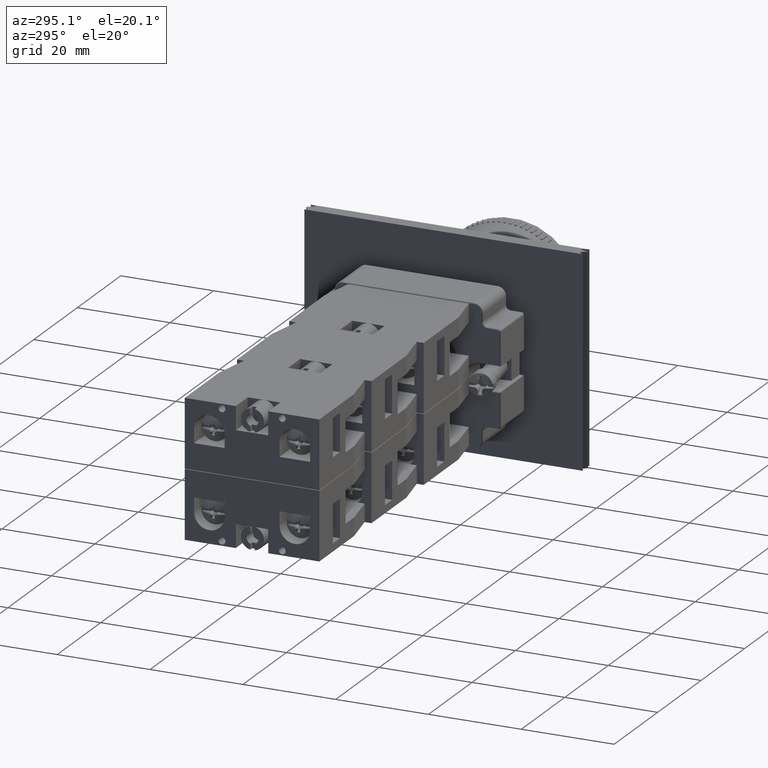
[diagram: clean part render]
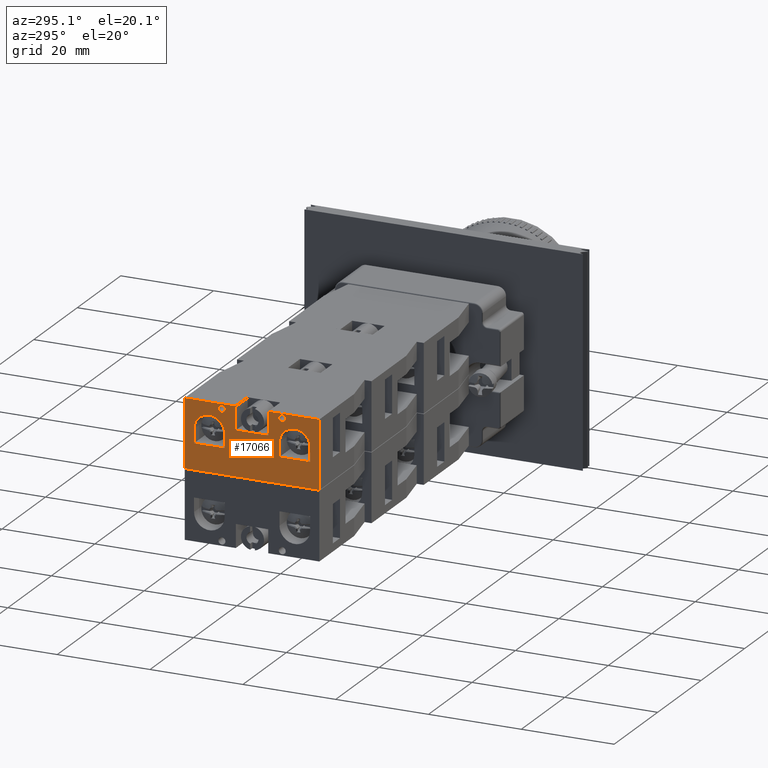
[diagram: same view with one face highlighted and labeled with its STEP entity id]
A machine part, auxiliary view. The second image highlights one B-rep face of the part: STEP entity #17066.
In plain terms, the highlighted planar face has unit normal (-1, -0, -0).
Its self-contained STEP definition (entity closure, byte-faithful):
#15468=CARTESIAN_POINT('',(-44.936741828918471,23.797073323279623,14.699999999999999));
#15469=VERTEX_POINT('',#15468);
#15476=CARTESIAN_POINT('',(-44.936741828918471,23.797073323279623,0.0));
#15477=VERTEX_POINT('',#15476);
#15478=CARTESIAN_POINT('',(-44.936741828918471,23.797073323279623,0.0));
#15479=DIRECTION('',(0.0,0.0,1.0));
#15480=VECTOR('',#15479,14.699999999999999);
#15481=LINE('',#15478,#15480);
#15482=EDGE_CURVE('',#15477,#15469,#15481,.T.);
#16451=CARTESIAN_POINT('',(-36.186741828918457,23.797073323279623,13.700000000000001));
#16452=VERTEX_POINT('',#16451);
#16453=CARTESIAN_POINT('',(-36.936741828918457,23.797073323279623,13.700000000000001));
#16454=DIRECTION('',(0.0,-1.0,0.0));
#16455=DIRECTION('',(-1.0,0.0,0.0));
#16456=AXIS2_PLACEMENT_3D('',#16453,#16454,#16455);
#16457=CIRCLE('',#16456,0.750000000000000);
#16458=EDGE_CURVE('',#16452,#16452,#16457,.T.);
#16488=CARTESIAN_POINT('',(-23.186741828918453,23.797073323279626,13.700000000000001));
#16489=VERTEX_POINT('',#16488);
#16490=CARTESIAN_POINT('',(-23.936741828918457,23.797073323279623,13.700000000000001));
#16491=DIRECTION('',(0.0,-1.0,0.0));
#16492=DIRECTION('',(-1.0,0.0,0.0));
#16493=AXIS2_PLACEMENT_3D('',#16490,#16491,#16492);
#16494=CIRCLE('',#16493,0.750000000000000);
#16495=EDGE_CURVE('',#16489,#16489,#16494,.T.);
#16563=CARTESIAN_POINT('',(-24.536741828918480,23.797073323279633,5.600000000000000));
#16564=VERTEX_POINT('',#16563);
#16571=CARTESIAN_POINT('',(-24.536741828918473,23.797073323279633,8.600000000000000));
#16572=VERTEX_POINT('',#16571);
#16573=CARTESIAN_POINT('',(-24.536741828918473,23.797073323279633,8.600000000000000));
#16574=DIRECTION('',(0.0,0.0,-1.0));
#16575=VECTOR('',#16574,3.0);
#16576=LINE('',#16573,#16575);
#16577=EDGE_CURVE('',#16572,#16564,#16576,.T.);
#16594=CARTESIAN_POINT('',(-17.936741828918478,23.797073323279641,5.600000000000000));
#16595=VERTEX_POINT('',#16594);
#16602=CARTESIAN_POINT('',(-24.536741828918480,23.797073323279633,5.600000000000000));
#16603=DIRECTION('',(1.0,0.0,0.0));
#16604=VECTOR('',#16603,6.600000000000001);
#16605=LINE('',#16602,#16604);
#16606=EDGE_CURVE('',#16564,#16595,#16605,.T.);
#16659=CARTESIAN_POINT('',(-36.336741828918470,23.797073323279623,8.600000000000000));
#16660=VERTEX_POINT('',#16659);
#16667=CARTESIAN_POINT('',(-36.336741828918463,23.797073323279623,5.600000000000000));
#16668=VERTEX_POINT('',#16667);
#16669=CARTESIAN_POINT('',(-36.336741828918463,23.797073323279623,5.600000000000000));
#16670=DIRECTION('',(0.0,0.0,1.0));
#16671=VECTOR('',#16670,3.0);
#16672=LINE('',#16669,#16671);
#16673=EDGE_CURVE('',#16668,#16660,#16672,.T.);
#16690=CARTESIAN_POINT('',(-42.936741828918471,23.797073323279623,8.600000000000000));
#16691=VERTEX_POINT('',#16690);
#16698=CARTESIAN_POINT('',(-39.636741828918467,23.797073323279623,8.600000000000000));
#16699=DIRECTION('',(0.0,-1.0,0.0));
#16700=DIRECTION('',(1.0,0.0,0.0));
#16701=AXIS2_PLACEMENT_3D('',#16698,#16699,#16700);
#16702=CIRCLE('',#16701,3.300000000000001);
#16703=EDGE_CURVE('',#16660,#16691,#16702,.T.);
#16715=CARTESIAN_POINT('',(-17.936741828918478,23.797073323279641,8.600000000000000));
#16716=VERTEX_POINT('',#16715);
#16723=CARTESIAN_POINT('',(-17.936741828918478,23.797073323279641,5.600000000000000));
#16724=DIRECTION('',(0.0,0.0,1.0));
#16725=VECTOR('',#16724,3.0);
#16726=LINE('',#16723,#16725);
#16727=EDGE_CURVE('',#16595,#16716,#16726,.T.);
#16761=CARTESIAN_POINT('',(-21.236741828918476,23.797073323279648,8.600000000000000));
#16762=DIRECTION('',(0.0,-1.0,0.0));
#16763=DIRECTION('',(-1.0,0.0,0.0));
#16764=AXIS2_PLACEMENT_3D('',#16761,#16762,#16763);
#16765=CIRCLE('',#16764,3.300000000000001);
#16766=EDGE_CURVE('',#16716,#16572,#16765,.T.);
#16797=CARTESIAN_POINT('',(-42.936741828918471,23.797073323279623,5.600000000000000));
#16798=VERTEX_POINT('',#16797);
#16805=CARTESIAN_POINT('',(-42.936741828918471,23.797073323279623,8.600000000000000));
#16806=DIRECTION('',(0.0,0.0,-1.0));
#16807=VECTOR('',#16806,3.0);
#16808=LINE('',#16805,#16807);
#16809=EDGE_CURVE('',#16691,#16798,#16808,.T.);
#16822=CARTESIAN_POINT('',(-42.936741828918471,23.797073323279623,5.600000000000000));
#16823=DIRECTION('',(1.0,0.0,0.0));
#16824=VECTOR('',#16823,6.600000000000009);
#16825=LINE('',#16822,#16824);
#16826=EDGE_CURVE('',#16798,#16668,#16825,.T.);
#16902=CARTESIAN_POINT('',(-26.936741828918468,23.797073323279626,14.699999999999999));
#16903=VERTEX_POINT('',#16902);
#16910=CARTESIAN_POINT('',(-26.936741828918464,23.797073323279626,9.700000000000001));
#16911=VERTEX_POINT('',#16910);
#16912=CARTESIAN_POINT('',(-26.936741828918464,23.797073323279626,9.700000000000001));
#16913=DIRECTION('',(0.0,0.0,1.0));
#16914=VECTOR('',#16913,4.999999999999998);
#16915=LINE('',#16912,#16914);
#16916=EDGE_CURVE('',#16911,#16903,#16915,.T.);
#16941=CARTESIAN_POINT('',(-33.936741828918464,23.797073323279623,9.700000000000001));
#16942=VERTEX_POINT('',#16941);
#16943=CARTESIAN_POINT('',(-33.936741828918464,23.797073323279623,9.700000000000001));
#16944=DIRECTION('',(1.0,0.0,0.0));
#16945=VECTOR('',#16944,7.0);
#16946=LINE('',#16943,#16945);
#16947=EDGE_CURVE('',#16942,#16911,#16946,.T.);
#16972=CARTESIAN_POINT('',(-33.936741828918464,23.797073323279623,14.699999999999999));
#16973=VERTEX_POINT('',#16972);
#16974=CARTESIAN_POINT('',(-33.936741828918464,23.797073323279623,14.699999999999999));
#16975=DIRECTION('',(0.0,0.0,-1.0));
#16976=VECTOR('',#16975,4.999999999999998);
#16977=LINE('',#16974,#16976);
#16978=EDGE_CURVE('',#16973,#16942,#16977,.T.);
#17009=CARTESIAN_POINT('',(-44.936741828918471,23.797073323279623,0.0));
#17010=DIRECTION('',(0.0,1.0,0.0));
#17011=DIRECTION('',(0.0,0.0,1.0));
#17012=AXIS2_PLACEMENT_3D('',#17009,#17010,#17011);
#17013=PLANE('',#17012);
#17014=ORIENTED_EDGE('',*,*,#16978,.T.);
#17015=ORIENTED_EDGE('',*,*,#16947,.T.);
#17016=ORIENTED_EDGE('',*,*,#16916,.T.);
#17017=CARTESIAN_POINT('',(-15.936741828918466,23.797073323279626,14.699999999999999));
#17018=VERTEX_POINT('',#17017);
#17019=CARTESIAN_POINT('',(-26.936741828918468,23.797073323279626,14.699999999999999));
#17020=DIRECTION('',(1.0,0.0,0.0));
#17021=VECTOR('',#17020,11.000000000000002);
#17022=LINE('',#17019,#17021);
#17023=EDGE_CURVE('',#16903,#17018,#17022,.T.);
#17024=ORIENTED_EDGE('',*,*,#17023,.T.);
#17025=CARTESIAN_POINT('',(-15.936741828918466,23.797073323279626,0.0));
#17026=VERTEX_POINT('',#17025);
#17027=CARTESIAN_POINT('',(-15.936741828918466,23.797073323279626,0.0));
#17028=DIRECTION('',(0.0,0.0,1.0));
#17029=VECTOR('',#17028,14.699999999999999);
#17030=LINE('',#17027,#17029);
#17031=EDGE_CURVE('',#17026,#17018,#17030,.T.);
#17032=ORIENTED_EDGE('',*,*,#17031,.F.);
#17033=CARTESIAN_POINT('',(-44.936741828918471,23.797073323279623,0.0));
#17034=DIRECTION('',(1.0,0.0,0.0));
#17035=VECTOR('',#17034,29.000000000000007);
#17036=LINE('',#17033,#17035);
#17037=EDGE_CURVE('',#15477,#17026,#17036,.T.);
#17038=ORIENTED_EDGE('',*,*,#17037,.F.);
#17039=ORIENTED_EDGE('',*,*,#15482,.T.);
#17040=CARTESIAN_POINT('',(-44.936741828918471,23.797073323279623,14.699999999999999));
#17041=DIRECTION('',(1.0,0.0,0.0));
#17042=VECTOR('',#17041,11.000000000000007);
#17043=LINE('',#17040,#17042);
#17044=EDGE_CURVE('',#15469,#16973,#17043,.T.);
#17045=ORIENTED_EDGE('',*,*,#17044,.T.);
#17046=EDGE_LOOP('',(#17014,#17015,#17016,#17024,#17032,#17038,#17039,#17045));
#17047=FACE_OUTER_BOUND('',#17046,.T.);
#17048=ORIENTED_EDGE('',*,*,#16458,.T.);
#17049=EDGE_LOOP('',(#17048));
#17050=FACE_BOUND('',#17049,.T.);
#17051=ORIENTED_EDGE('',*,*,#16495,.T.);
#17052=EDGE_LOOP('',(#17051));
#17053=FACE_BOUND('',#17052,.T.);
#17054=ORIENTED_EDGE('',*,*,#16727,.T.);
#17055=ORIENTED_EDGE('',*,*,#16766,.T.);
#17056=ORIENTED_EDGE('',*,*,#16577,.T.);
#17057=ORIENTED_EDGE('',*,*,#16606,.T.);
#17058=EDGE_LOOP('',(#17054,#17055,#17056,#17057));
#17059=FACE_BOUND('',#17058,.T.);
#17060=ORIENTED_EDGE('',*,*,#16809,.T.);
#17061=ORIENTED_EDGE('',*,*,#16826,.T.);
#17062=ORIENTED_EDGE('',*,*,#16673,.T.);
#17063=ORIENTED_EDGE('',*,*,#16703,.T.);
#17064=EDGE_LOOP('',(#17060,#17061,#17062,#17063));
#17065=FACE_BOUND('',#17064,.T.);
#17066=ADVANCED_FACE('',(#17047,#17050,#17053,#17059,#17065),#17013,.T.);